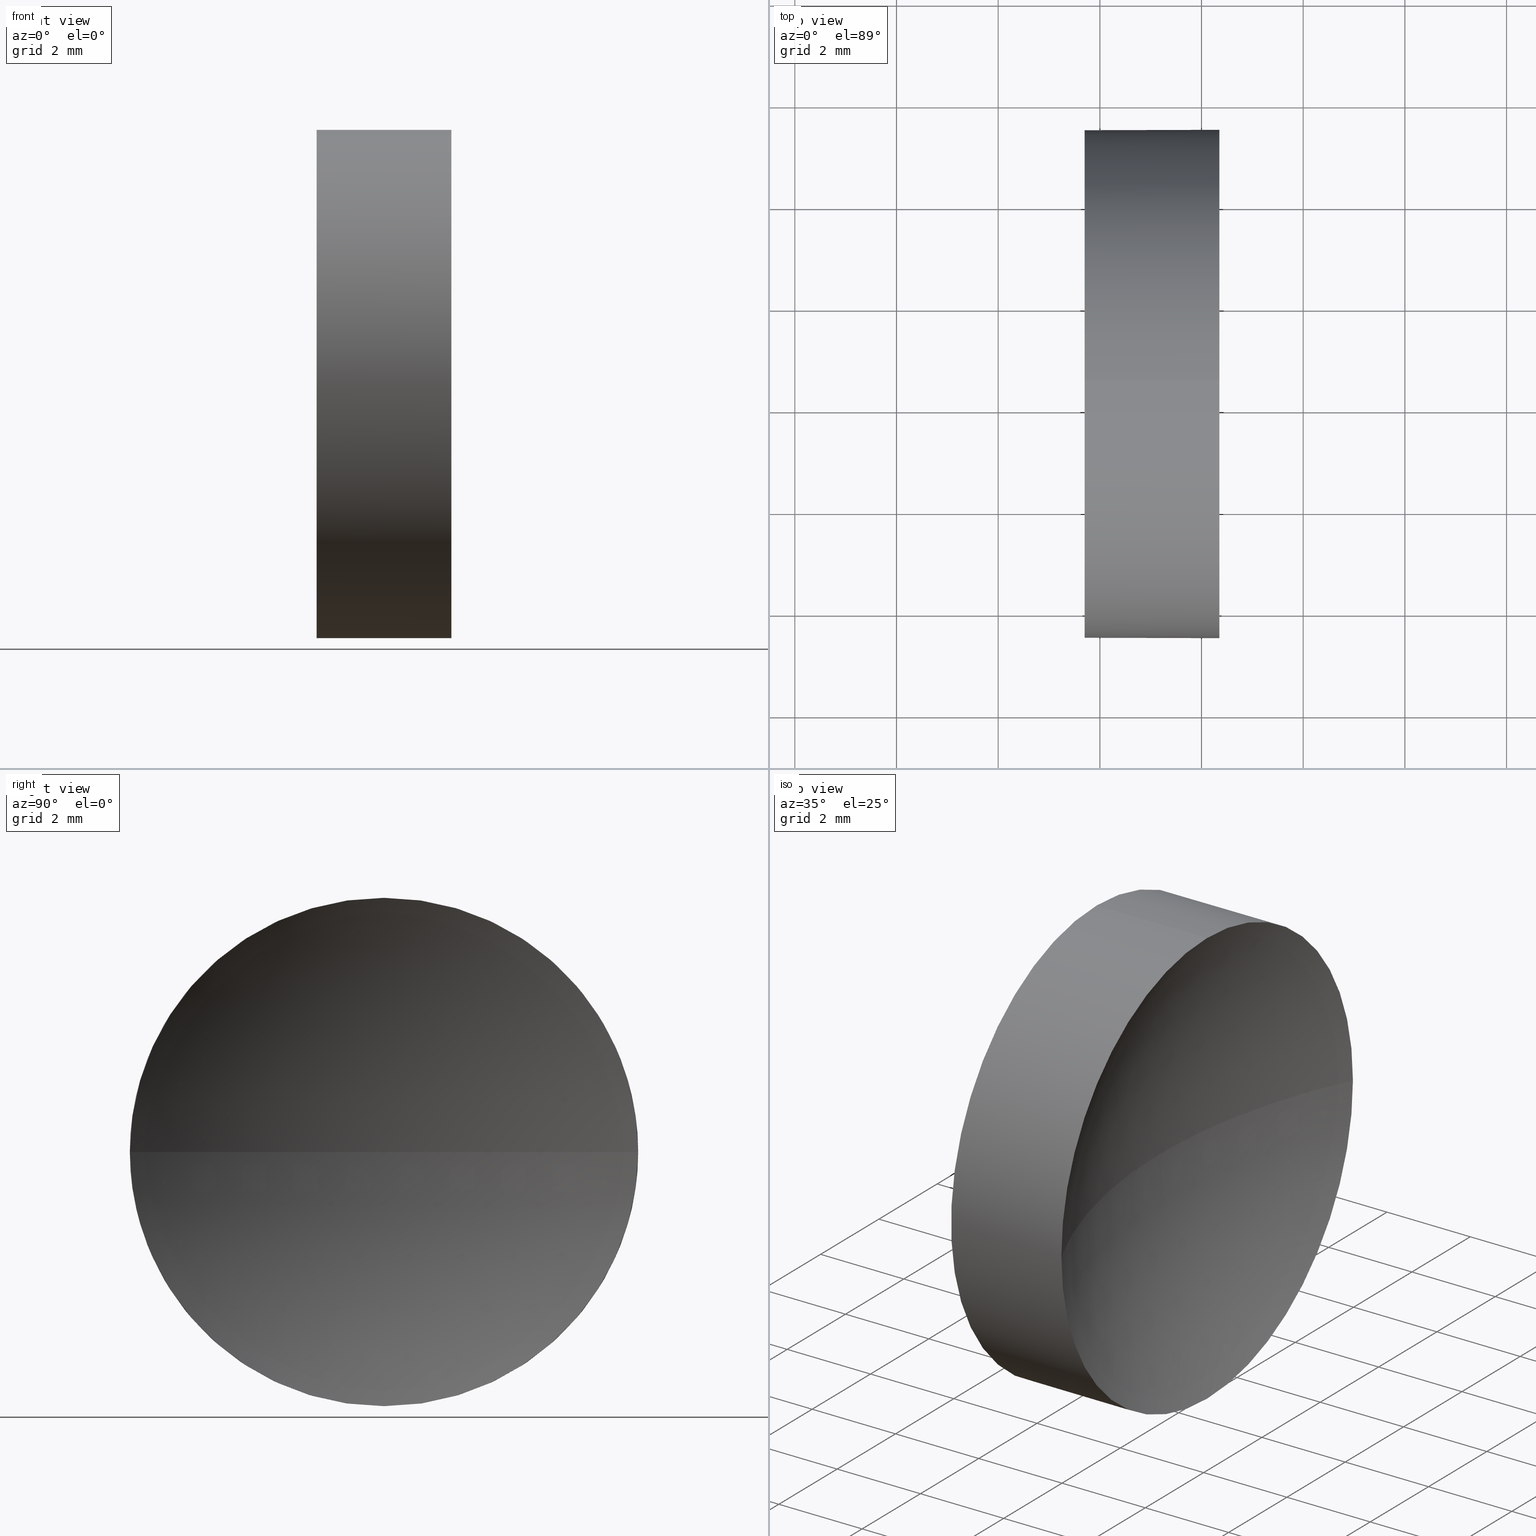
[diagram: canonical four-view strip — front | top / right | iso, engineering-drawing reading convention]
A machine part, canonical four-view strip (front | top / right | iso — engineering-drawing reading convention). The complete STEP part file that produces these views, byte-faithful:
ISO-10303-21;
HEADER;
FILE_DESCRIPTION (( 'STEP AP214' ),
    '1' );
FILE_NAME ('120254.STEP',
    '2019-06-25T01:12:34',
    ( '' ),
    ( '' ),
    'SwSTEP 2.0',
    'SolidWorks 2016',
    '' );
FILE_SCHEMA (( 'AUTOMOTIVE_DESIGN' ));
ENDSEC;

DATA;
#1 = CIRCLE ( 'NONE', #94, 11.45999999999999000 ) ;
#2 = DIRECTION ( 'NONE',  ( 0.0000000000000000000, 0.0000000000000000000, 1.000000000000000000 ) ) ;
#3 = CARTESIAN_POINT ( 'NONE',  ( 47.70171121220715100, 28.47759563463748100, 0.0000000000000000000 ) ) ;
#4 = VERTEX_POINT ( 'NONE', #21 ) ;
#5 = DIRECTION ( 'NONE',  ( -1.000000000000000000, -0.0000000000000000000, -0.0000000000000000000 ) ) ;
#6 = UNCERTAINTY_MEASURE_WITH_UNIT (LENGTH_MEASURE( 1.000000000000000100E-005 ), #78, 'distance_accuracy_value', 'NONE');
#7 = ADVANCED_FACE ( 'NONE', ( #61 ), #143, .T. ) ;
#8 = ORIENTED_EDGE ( 'NONE', *, *, #125, .T. ) ;
#9 = VERTEX_POINT ( 'NONE', #63 ) ;
#10 =( GEOMETRIC_REPRESENTATION_CONTEXT ( 3 ) GLOBAL_UNCERTAINTY_ASSIGNED_CONTEXT ( ( #170 ) ) GLOBAL_UNIT_ASSIGNED_CONTEXT ( ( #129, #27, #126 ) ) REPRESENTATION_CONTEXT ( 'NONE', 'WORKASPACE' ) );
#11 = COLOUR_RGB ( '',1.000000000000000000, 1.000000000000000000, 1.000000000000000000 ) ;
#12 = PRODUCT_CONTEXT ( 'NONE', #71, 'mechanical' ) ;
#13 = APPLICATION_PROTOCOL_DEFINITION ( 'draft international standard', 'automotive_design', 1998, #87 ) ;
#14 = SURFACE_STYLE_USAGE ( .BOTH. , #70 ) ;
#15 = DIRECTION ( 'NONE',  ( -1.000000000000000000, -0.0000000000000000000, -0.0000000000000000000 ) ) ;
#16 = UNCERTAINTY_MEASURE_WITH_UNIT (LENGTH_MEASURE( 1.000000000000000100E-005 ), #158, 'distance_accuracy_value', 'NONE');
#17 = DIRECTION ( 'NONE',  ( 0.0000000000000000000, 0.0000000000000000000, 1.000000000000000000 ) ) ;
#18 = CARTESIAN_POINT ( 'NONE',  ( 60.66171121220714500, 28.47759563463748100, 0.0000000000000000000 ) ) ;
#19 = AXIS2_PLACEMENT_3D ( 'NONE', #107, #173, #89 ) ;
#20 = DIRECTION ( 'NONE',  ( -1.000000000000000000, -0.0000000000000000000, -0.0000000000000000000 ) ) ;
#21 = CARTESIAN_POINT ( 'NONE',  ( 50.34998972644154900, 28.47759563463748100, 4.999999999999990200 ) ) ;
#22 = DIRECTION ( 'NONE',  ( 0.0000000000000000000, 0.0000000000000000000, 1.000000000000000000 ) ) ;
#23 = VECTOR ( 'NONE', #15, 1000.000000000000000 ) ;
#24 = CARTESIAN_POINT ( 'NONE',  ( 60.66171121220714500, 28.47759563463748100, 0.0000000000000000000 ) ) ;
#25 = FACE_OUTER_BOUND ( 'NONE', #86, .T. ) ;
#26 = ORIENTED_EDGE ( 'NONE', *, *, #68, .T. ) ;
#27 =( NAMED_UNIT ( * ) PLANE_ANGLE_UNIT ( ) SI_UNIT ( $, .RADIAN. ) );
#28 = DIRECTION ( 'NONE',  ( 0.0000000000000000000, 0.0000000000000000000, 1.000000000000000000 ) ) ;
#29 = EDGE_CURVE ( 'NONE', #72, #100, #110, .T. ) ;
#30 = SPHERICAL_SURFACE ( 'NONE', #44, 11.45999999999999000 ) ;
#31 = VECTOR ( 'NONE', #76, 1000.000000000000000 ) ;
#32 = CARTESIAN_POINT ( 'NONE',  ( 47.70171121220715100, 28.47759563463748100, 0.0000000000000000000 ) ) ;
#33 = PRODUCT_RELATED_PRODUCT_CATEGORY ( 'part', '', ( #171 ) ) ;
#34 = DIRECTION ( 'NONE',  ( -1.000000000000000000, -0.0000000000000000000, -0.0000000000000000000 ) ) ;
#35 = DIRECTION ( 'NONE',  ( 0.0000000000000000000, 0.0000000000000000000, 1.000000000000000000 ) ) ;
#36 = CARTESIAN_POINT ( 'NONE',  ( 44.78209190302423800, 28.47759563463748100, 0.0000000000000000000 ) ) ;
#37 = DIRECTION ( 'NONE',  ( 0.0000000000000000000, -1.224646799147353200E-016, 1.000000000000000000 ) ) ;
#38 = CARTESIAN_POINT ( 'NONE',  ( 60.66171121220714500, 28.47759563463748100, 0.0000000000000000000 ) ) ;
#39 = DIRECTION ( 'NONE',  ( 0.0000000000000000000, 0.0000000000000000000, -1.000000000000000000 ) ) ;
#40 = ORIENTED_EDGE ( 'NONE', *, *, #125, .F. ) ;
#41 = ADVANCED_FACE ( 'NONE', ( #25 ), #30, .F. ) ;
#42 = COLOUR_RGB ( '',1.000000000000000000, 1.000000000000000000, 1.000000000000000000 ) ;
#43 = VERTEX_POINT ( 'NONE', #106 ) ;
#44 = AXIS2_PLACEMENT_3D ( 'NONE', #24, #136, #178 ) ;
#45 = SPHERICAL_SURFACE ( 'NONE', #88, 11.45999999999999000 ) ;
#46 = ORIENTED_EDGE ( 'NONE', *, *, #141, .T. ) ;
#47 = ORIENTED_EDGE ( 'NONE', *, *, #118, .F. ) ;
#48 = CARTESIAN_POINT ( 'NONE',  ( 50.34998972644154900, 28.47759563463748100, 0.0000000000000000000 ) ) ;
#49 = ORIENTED_EDGE ( 'NONE', *, *, #104, .T. ) ;
#50 = ORIENTED_EDGE ( 'NONE', *, *, #29, .F. ) ;
#51 =( NAMED_UNIT ( * ) SI_UNIT ( $, .STERADIAN. ) SOLID_ANGLE_UNIT ( ) );
#52 = DIRECTION ( 'NONE',  ( -1.000000000000000000, 0.0000000000000000000, 0.0000000000000000000 ) ) ;
#53 = CIRCLE ( 'NONE', #122, 4.999999999999997300 ) ;
#54 = ADVANCED_FACE ( 'NONE', ( #139 ), #149, .T. ) ;
#55 = EDGE_CURVE ( 'NONE', #43, #9, #95, .T. ) ;
#56 = ADVANCED_FACE ( 'NONE', ( #67 ), #45, .F. ) ;
#57 = AXIS2_PLACEMENT_3D ( 'NONE', #38, #39, #52 ) ;
#58 = ADVANCED_BREP_SHAPE_REPRESENTATION ( '120254', ( #142, #116 ), #10 ) ;
#59 = PRODUCT_DEFINITION ( 'δ֪', '', #123, #111 ) ;
#60 = STYLED_ITEM ( 'NONE', ( #84 ), #58 ) ;
#61 = FACE_OUTER_BOUND ( 'NONE', #154, .T. ) ;
#62 = AXIS2_PLACEMENT_3D ( 'NONE', #103, #79, #177 ) ;
#63 = CARTESIAN_POINT ( 'NONE',  ( 50.34998972644154900, 28.47759563463748100, -4.999999999999990200 ) ) ;
#64 = FACE_OUTER_BOUND ( 'NONE', #114, .T. ) ;
#65 = CIRCLE ( 'NONE', #138, 4.999999999999997300 ) ;
#66 = PRESENTATION_LAYER_ASSIGNMENT (  '', '', ( #60 ) ) ;
#67 = FACE_OUTER_BOUND ( 'NONE', #162, .T. ) ;
#68 = EDGE_CURVE ( 'NONE', #9, #85, #73, .T. ) ;
#69 =( NAMED_UNIT ( * ) SI_UNIT ( $, .STERADIAN. ) SOLID_ANGLE_UNIT ( ) );
#70 = SURFACE_SIDE_STYLE ('',( #161 ) ) ;
#71 = APPLICATION_CONTEXT ( 'automotive_design' ) ;
#72 = VERTEX_POINT ( 'NONE', #91 ) ;
#73 = LINE ( 'NONE', #105, #31 ) ;
#74 = DIRECTION ( 'NONE',  ( 0.0000000000000000000, 0.0000000000000000000, 1.000000000000000000 ) ) ;
#75 = CARTESIAN_POINT ( 'NONE',  ( 44.78209190302423800, 28.47759563463748100, 4.999999999999993800 ) ) ;
#76 = DIRECTION ( 'NONE',  ( -1.000000000000000000, -0.0000000000000000000, -0.0000000000000000000 ) ) ;
#77 = CLOSED_SHELL ( 'NONE', ( #54, #41, #56, #7, #179 ) ) ;
#78 =( LENGTH_UNIT ( ) NAMED_UNIT ( * ) SI_UNIT ( .MILLI., .METRE. ) );
#79 = DIRECTION ( 'NONE',  ( -1.000000000000000000, -0.0000000000000000000, -0.0000000000000000000 ) ) ;
#80 = AXIS2_PLACEMENT_3D ( 'NONE', #36, #147, #22 ) ;
#81 = AXIS2_PLACEMENT_3D ( 'NONE', #134, #166, #150 ) ;
#82 = ORIENTED_EDGE ( 'NONE', *, *, #156, .F. ) ;
#83 = ORIENTED_EDGE ( 'NONE', *, *, #29, .T. ) ;
#84 = PRESENTATION_STYLE_ASSIGNMENT (( #14 ) ) ;
#85 = VERTEX_POINT ( 'NONE', #163 ) ;
#86 = EDGE_LOOP ( 'NONE', ( #124, #49, #50, #137 ) ) ;
#87 = APPLICATION_CONTEXT ( 'automotive_design' ) ;
#88 = AXIS2_PLACEMENT_3D ( 'NONE', #18, #2, #131 ) ;
#89 = DIRECTION ( 'NONE',  ( 0.0000000000000000000, 0.0000000000000000000, -1.000000000000000000 ) ) ;
#90 = AXIS2_PLACEMENT_3D ( 'NONE', #48, #121, #165 ) ;
#91 = CARTESIAN_POINT ( 'NONE',  ( 50.34998972644154900, 23.47759563463749200, 0.0000000000000000000 ) ) ;
#92 = SURFACE_STYLE_USAGE ( .BOTH. , #174 ) ;
#93 = PLANE ( 'NONE',  #19 ) ;
#94 = AXIS2_PLACEMENT_3D ( 'NONE', #151, #37, #132 ) ;
#95 = CIRCLE ( 'NONE', #127, 4.999999999999990200 ) ;
#96 = STYLED_ITEM ( 'NONE', ( #144 ), #142 ) ;
#97 = CARTESIAN_POINT ( 'NONE',  ( 0.0000000000000000000, 0.0000000000000000000, 0.0000000000000000000 ) ) ;
#98 =( NAMED_UNIT ( * ) PLANE_ANGLE_UNIT ( ) SI_UNIT ( $, .RADIAN. ) );
#99 = LINE ( 'NONE', #75, #23 ) ;
#100 = VERTEX_POINT ( 'NONE', #175 ) ;
#101 = FILL_AREA_STYLE ('',( #130 ) ) ;
#102 = CARTESIAN_POINT ( 'NONE',  ( 50.34998972644154900, 28.47759563463748100, 0.0000000000000000000 ) ) ;
#103 = CARTESIAN_POINT ( 'NONE',  ( 50.34998972644154900, 28.47759563463748100, 0.0000000000000000000 ) ) ;
#104 = EDGE_CURVE ( 'NONE', #43, #100, #1, .T. ) ;
#105 = CARTESIAN_POINT ( 'NONE',  ( 44.78209190302423800, 28.47759563463748100, -4.999999999999993800 ) ) ;
#106 = CARTESIAN_POINT ( 'NONE',  ( 50.34998972644154900, 33.47759563463747400, 6.123233995736756400E-016 ) ) ;
#107 = CARTESIAN_POINT ( 'NONE',  ( 47.70171121220715100, 28.47759563463748100, 0.0000000000000000000 ) ) ;
#108 = EDGE_CURVE ( 'NONE', #9, #72, #140, .T. ) ;
#109 = ORIENTED_EDGE ( 'NONE', *, *, #68, .F. ) ;
#110 = CIRCLE ( 'NONE', #57, 11.45999999999999000 ) ;
#111 = PRODUCT_DEFINITION_CONTEXT ( 'detailed design', #87, 'design' ) ;
#112 = MECHANICAL_DESIGN_GEOMETRIC_PRESENTATION_REPRESENTATION (  '', ( #96 ), #168 ) ;
#113 = ORIENTED_EDGE ( 'NONE', *, *, #156, .T. ) ;
#114 = EDGE_LOOP ( 'NONE', ( #113, #157 ) ) ;
#115 = CIRCLE ( 'NONE', #62, 4.999999999999990200 ) ;
#116 = AXIS2_PLACEMENT_3D ( 'NONE', #97, #28, #128 ) ;
#117 = ORIENTED_EDGE ( 'NONE', *, *, #141, .F. ) ;
#118 = EDGE_CURVE ( 'NONE', #85, #148, #65, .T. ) ;
#119 = CARTESIAN_POINT ( 'NONE',  ( 50.34998972644154900, 28.47759563463748100, 0.0000000000000000000 ) ) ;
#120 = ORIENTED_EDGE ( 'NONE', *, *, #108, .T. ) ;
#121 = DIRECTION ( 'NONE',  ( -1.000000000000000000, -0.0000000000000000000, -0.0000000000000000000 ) ) ;
#122 = AXIS2_PLACEMENT_3D ( 'NONE', #32, #5, #74 ) ;
#123 = PRODUCT_DEFINITION_FORMATION_WITH_SPECIFIED_SOURCE ( '�κ�', '', #171, .NOT_KNOWN. ) ;
#124 = ORIENTED_EDGE ( 'NONE', *, *, #55, .F. ) ;
#125 = EDGE_CURVE ( 'NONE', #72, #4, #115, .T. ) ;
#126 =( NAMED_UNIT ( * ) SI_UNIT ( $, .STERADIAN. ) SOLID_ANGLE_UNIT ( ) );
#127 = AXIS2_PLACEMENT_3D ( 'NONE', #102, #34, #17 ) ;
#128 = DIRECTION ( 'NONE',  ( 1.000000000000000000, 0.0000000000000000000, 0.0000000000000000000 ) ) ;
#129 =( LENGTH_UNIT ( ) NAMED_UNIT ( * ) SI_UNIT ( .MILLI., .METRE. ) );
#130 = FILL_AREA_STYLE_COLOUR ( '', #42 ) ;
#131 = DIRECTION ( 'NONE',  ( 0.0000000000000000000, -1.000000000000000000, 0.0000000000000000000 ) ) ;
#132 = DIRECTION ( 'NONE',  ( 0.0000000000000000000, -1.000000000000000000, -1.224646799147353200E-016 ) ) ;
#133 =( NAMED_UNIT ( * ) PLANE_ANGLE_UNIT ( ) SI_UNIT ( $, .RADIAN. ) );
#134 = CARTESIAN_POINT ( 'NONE',  ( 44.78209190302423800, 28.47759563463748100, 0.0000000000000000000 ) ) ;
#135 = MECHANICAL_DESIGN_GEOMETRIC_PRESENTATION_REPRESENTATION (  '', ( #60 ), #167 ) ;
#136 = DIRECTION ( 'NONE',  ( 0.0000000000000000000, 0.0000000000000000000, 1.000000000000000000 ) ) ;
#137 = ORIENTED_EDGE ( 'NONE', *, *, #108, .F. ) ;
#138 = AXIS2_PLACEMENT_3D ( 'NONE', #3, #20, #35 ) ;
#139 = FACE_OUTER_BOUND ( 'NONE', #169, .T. ) ;
#140 = CIRCLE ( 'NONE', #185, 4.999999999999990200 ) ;
#141 = EDGE_CURVE ( 'NONE', #4, #43, #152, .T. ) ;
#142 = MANIFOLD_SOLID_BREP ( '��ת1', #77 ) ;
#143 = CYLINDRICAL_SURFACE ( 'NONE', #81, 4.999999999999993800 ) ;
#144 = PRESENTATION_STYLE_ASSIGNMENT (( #92 ) ) ;
#145 = DIRECTION ( 'NONE',  ( -1.000000000000000000, -0.0000000000000000000, -0.0000000000000000000 ) ) ;
#146 = EDGE_CURVE ( 'NONE', #4, #148, #99, .T. ) ;
#147 = DIRECTION ( 'NONE',  ( -1.000000000000000000, -0.0000000000000000000, -0.0000000000000000000 ) ) ;
#148 = VERTEX_POINT ( 'NONE', #164 ) ;
#149 = CYLINDRICAL_SURFACE ( 'NONE', #80, 4.999999999999993800 ) ;
#150 = DIRECTION ( 'NONE',  ( 0.0000000000000000000, 0.0000000000000000000, 1.000000000000000000 ) ) ;
#151 = CARTESIAN_POINT ( 'NONE',  ( 60.66171121220714500, 28.47759563463748100, 0.0000000000000000000 ) ) ;
#152 = CIRCLE ( 'NONE', #90, 4.999999999999990200 ) ;
#153 = SHAPE_DEFINITION_REPRESENTATION ( #180, #58 ) ;
#154 = EDGE_LOOP ( 'NONE', ( #109, #120, #8, #172, #47 ) ) ;
#155 = ORIENTED_EDGE ( 'NONE', *, *, #146, .F. ) ;
#156 = EDGE_CURVE ( 'NONE', #148, #85, #53, .T. ) ;
#157 = ORIENTED_EDGE ( 'NONE', *, *, #118, .T. ) ;
#158 =( LENGTH_UNIT ( ) NAMED_UNIT ( * ) SI_UNIT ( .MILLI., .METRE. ) );
#159 = PRESENTATION_LAYER_ASSIGNMENT (  '', '', ( #96 ) ) ;
#160 = APPLICATION_PROTOCOL_DEFINITION ( 'draft international standard', 'automotive_design', 1998, #71 ) ;
#161 = SURFACE_STYLE_FILL_AREA ( #183 ) ;
#162 = EDGE_LOOP ( 'NONE', ( #181, #117, #40, #83 ) ) ;
#163 = CARTESIAN_POINT ( 'NONE',  ( 47.70171121220715100, 28.47759563463748100, -4.999999999999997300 ) ) ;
#164 = CARTESIAN_POINT ( 'NONE',  ( 47.70171121220715100, 28.47759563463748100, 4.999999999999997300 ) ) ;
#165 = DIRECTION ( 'NONE',  ( 0.0000000000000000000, 0.0000000000000000000, 1.000000000000000000 ) ) ;
#166 = DIRECTION ( 'NONE',  ( -1.000000000000000000, -0.0000000000000000000, -0.0000000000000000000 ) ) ;
#167 =( GEOMETRIC_REPRESENTATION_CONTEXT ( 3 ) GLOBAL_UNCERTAINTY_ASSIGNED_CONTEXT ( ( #16 ) ) GLOBAL_UNIT_ASSIGNED_CONTEXT ( ( #158, #98, #69 ) ) REPRESENTATION_CONTEXT ( 'NONE', 'WORKASPACE' ) );
#168 =( GEOMETRIC_REPRESENTATION_CONTEXT ( 3 ) GLOBAL_UNCERTAINTY_ASSIGNED_CONTEXT ( ( #6 ) ) GLOBAL_UNIT_ASSIGNED_CONTEXT ( ( #78, #133, #51 ) ) REPRESENTATION_CONTEXT ( 'NONE', 'WORKASPACE' ) );
#169 = EDGE_LOOP ( 'NONE', ( #184, #26, #82, #155, #46 ) ) ;
#170 = UNCERTAINTY_MEASURE_WITH_UNIT (LENGTH_MEASURE( 1.000000000000000100E-005 ), #129, 'distance_accuracy_value', 'NONE');
#171 = PRODUCT ( '120254', '120254', '', ( #12 ) ) ;
#172 = ORIENTED_EDGE ( 'NONE', *, *, #146, .T. ) ;
#173 = DIRECTION ( 'NONE',  ( 1.000000000000000000, 0.0000000000000000000, 0.0000000000000000000 ) ) ;
#174 = SURFACE_SIDE_STYLE ('',( #182 ) ) ;
#175 = CARTESIAN_POINT ( 'NONE',  ( 49.20171121220715800, 28.47759563463748100, 0.0000000000000000000 ) ) ;
#176 = DIRECTION ( 'NONE',  ( 0.0000000000000000000, 0.0000000000000000000, 1.000000000000000000 ) ) ;
#177 = DIRECTION ( 'NONE',  ( 0.0000000000000000000, 0.0000000000000000000, 1.000000000000000000 ) ) ;
#178 = DIRECTION ( 'NONE',  ( 0.0000000000000000000, -1.000000000000000000, 0.0000000000000000000 ) ) ;
#179 = ADVANCED_FACE ( 'NONE', ( #64 ), #93, .F. ) ;
#180 = PRODUCT_DEFINITION_SHAPE ( 'NONE', 'NONE',  #59 ) ;
#181 = ORIENTED_EDGE ( 'NONE', *, *, #104, .F. ) ;
#182 = SURFACE_STYLE_FILL_AREA ( #101 ) ;
#183 = FILL_AREA_STYLE ('',( #186 ) ) ;
#184 = ORIENTED_EDGE ( 'NONE', *, *, #55, .T. ) ;
#185 = AXIS2_PLACEMENT_3D ( 'NONE', #119, #145, #176 ) ;
#186 = FILL_AREA_STYLE_COLOUR ( '', #11 ) ;
ENDSEC;
END-ISO-10303-21;
